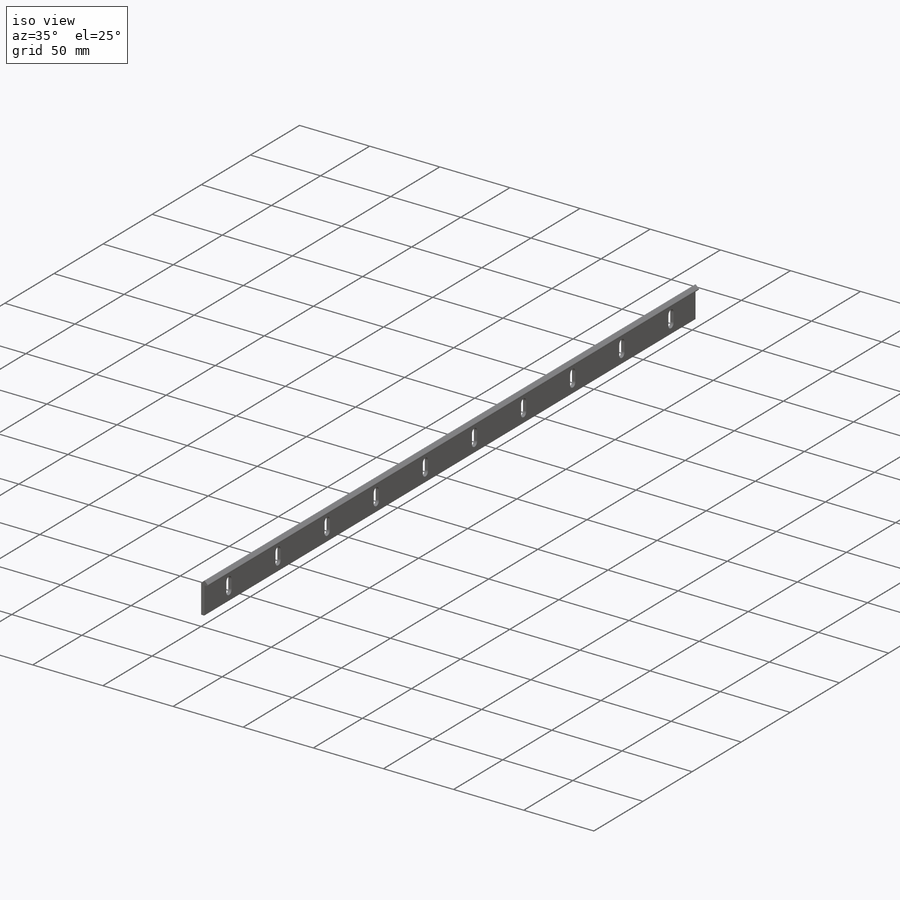
[diagram: iso view]
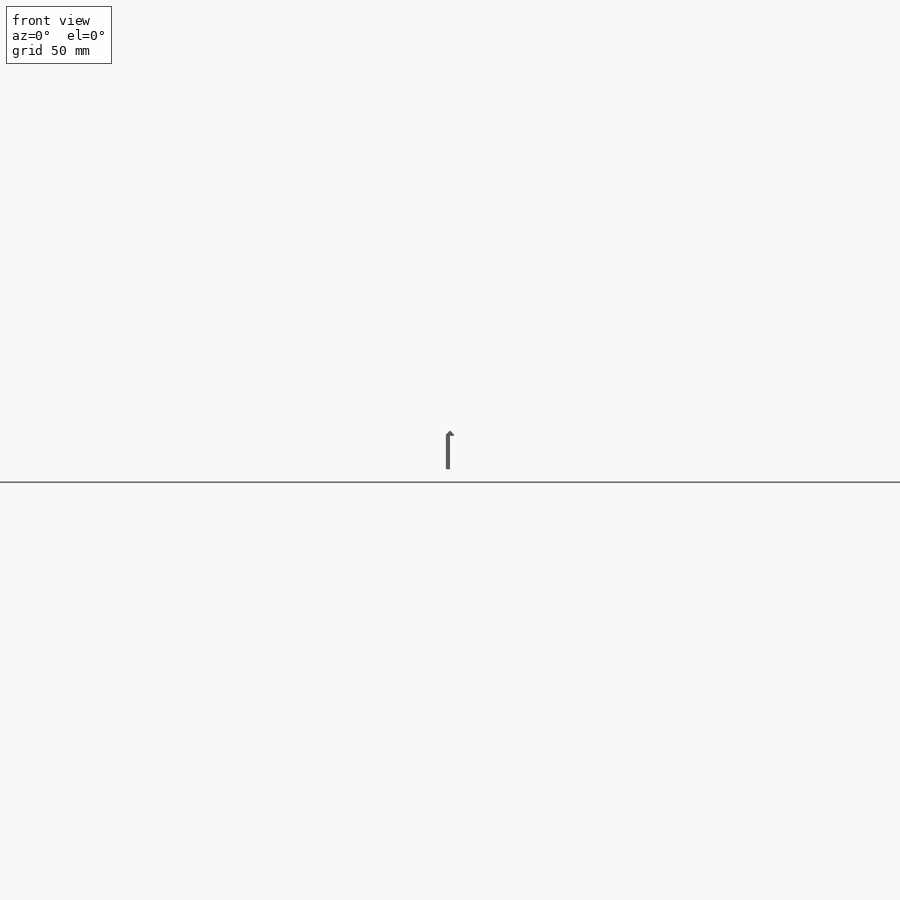
[diagram: front view]
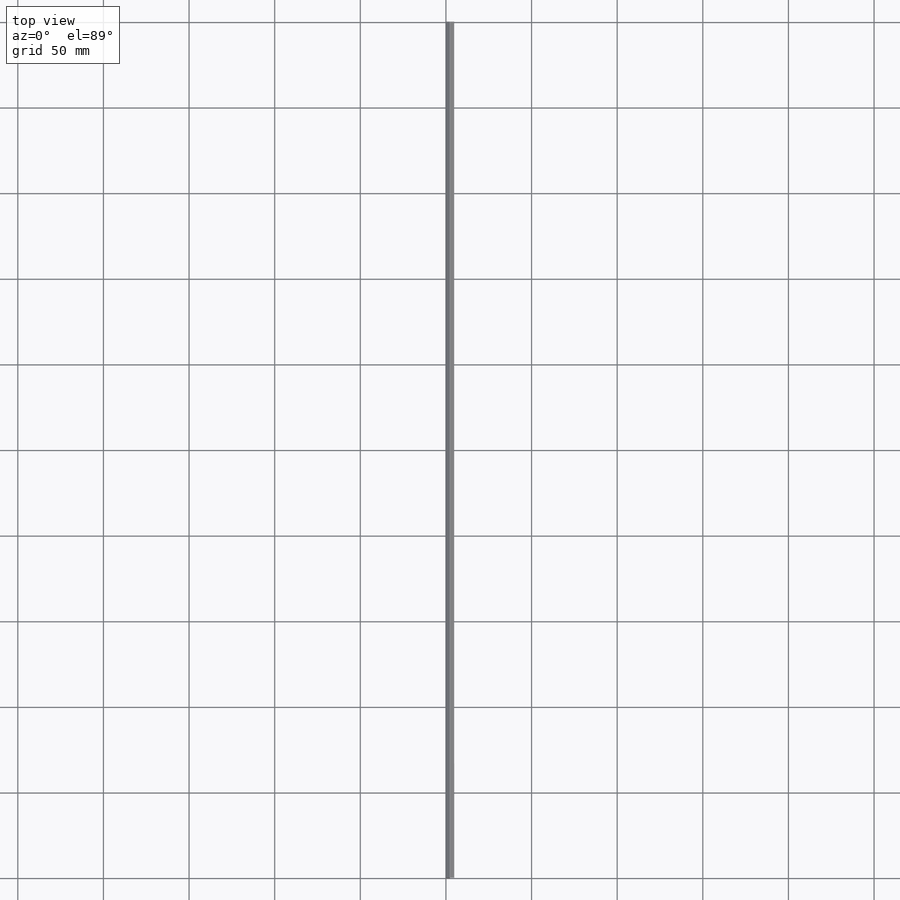
[diagram: top view]
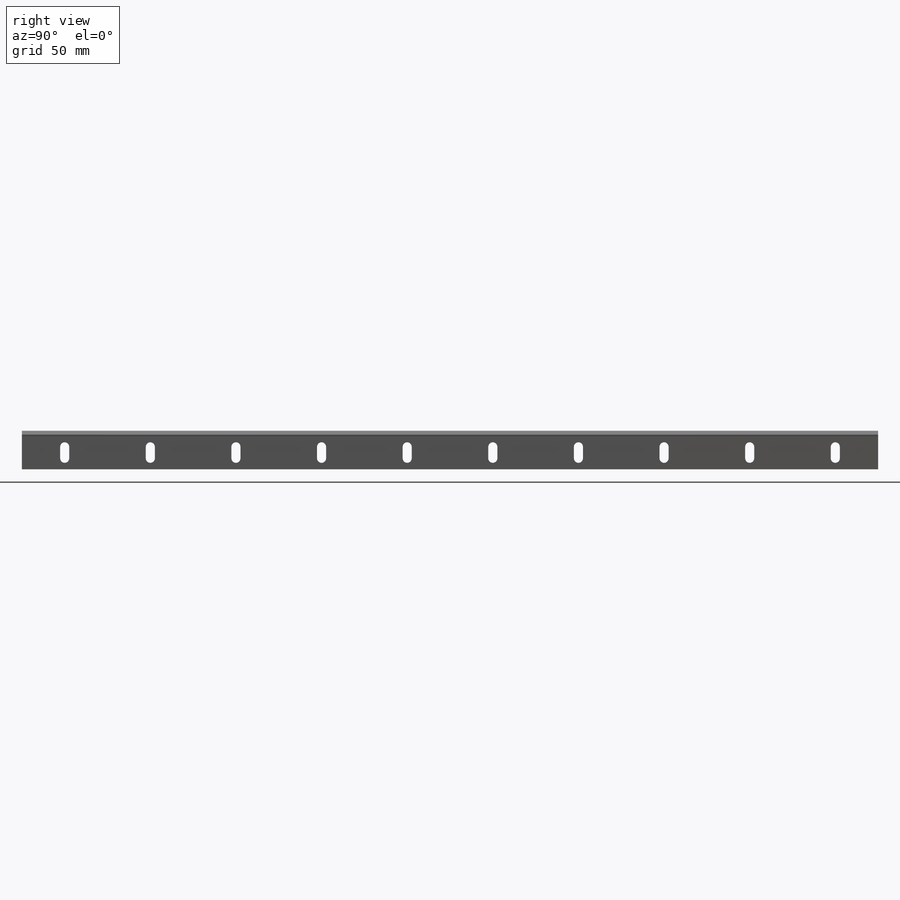
[diagram: right view]
SOLIDWORKS PART (.sldprt)
format: sldprt  version: not decoded by parser v0  size: 272,384 bytes
history: native  units: mm
features: fillet x4, sketch x2, material x1, extrude x1, cut_extrude x1, pattern_linear x1 (+11 scaffold rows collapsed)
feature tree (21):
  scaffold x11  (default folders/planes/origin — collapsed)
  material  "6061-T6 (SS)"
  sketch  "Sketch1"  dims[c1.D5=~0.502627mm c1.D6=~0.502627mm c1.D1=2.375mm c1.D2=19.5291mm c1.D3=2.375mm c1.D4=2.9679mm c2.D5=~0.878556mm c3.D5=~139.399304deg c3.D4=2.9679mm c4.D5=~0.04067mm c4.D4=2.9679mm c4.D6=22.497mm]
  extrude  "Boss-Extrude1"  Depth=500mm
  fillet  "Fillet1"  Radius=0.503297mm
  fillet  "Fillet2"  Radius=0.503983mm
  fillet  "Fillet3"  Radius=0.301576mm
  fillet  "Fillet4"  Radius=0.301576mm
  sketch  "Sketch2"  dims[c1.D3=2.65mm c1.D1=5.3mm c1.D2=6.7mm c2.D3=9.7543mm c2.D4=25.0mm]
  cut_extrude  "Cut-Extrude1"  [1 undecoded]
  pattern_linear  "LPattern1"  Count1=10 Count2=1 Spacing1=50mm Spacing2=10mm
decode coverage: 8 of 9 modeling features carry decoded parameters
note: ~ marks probable driven/reference dimensions
note: 1 parameter value undecoded
note: suppression state not decoded; provenance and decode notes live in map.json
